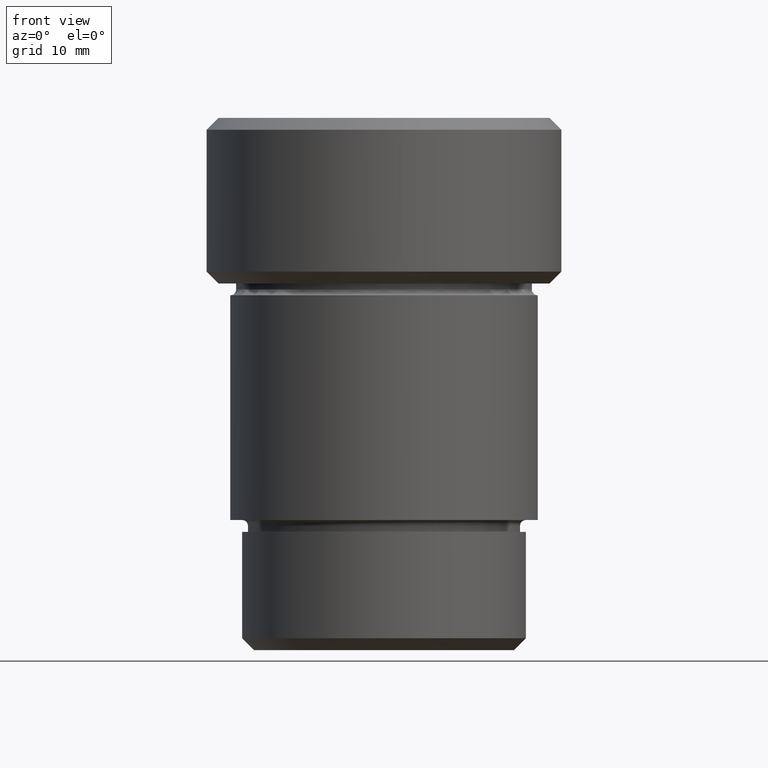
[diagram: clean part render]
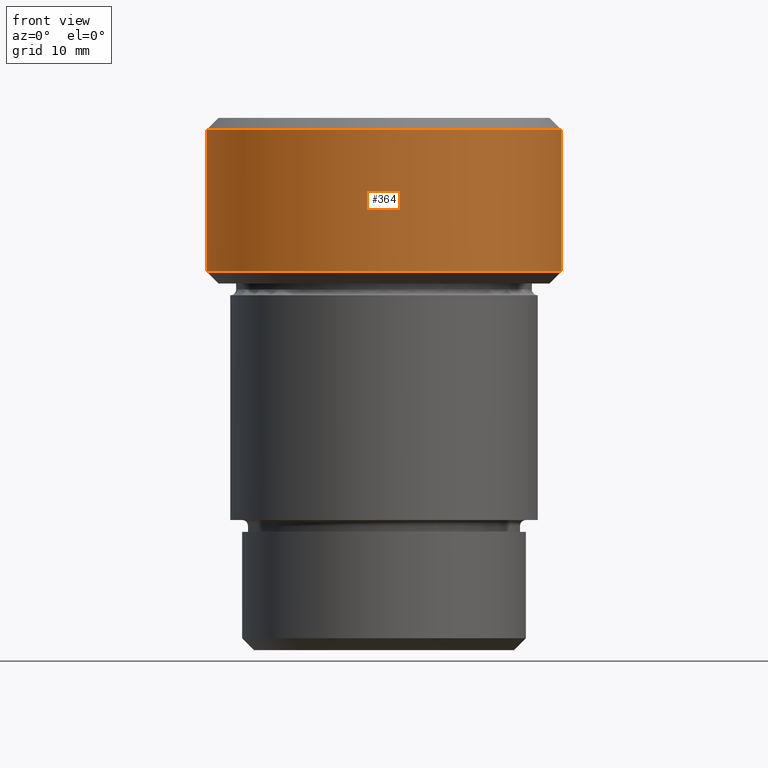
[diagram: same view with one face highlighted and labeled with its STEP entity id]
A machine part, front view. The second image highlights one B-rep face of the part: STEP entity #364.
In plain terms, the highlighted cylindrical surface (partial cylindrical patch) has radius 15 mm, axis along (-0, -0, 1).
Its self-contained STEP definition (entity closure, byte-faithful):
#20 = EDGE_CURVE ( 'NONE', #369, #198, #117, .T. ) ;
#76 = DIRECTION ( 'NONE',  ( -1.000000000000000000, 0.000000000000000000, 0.000000000000000000 ) ) ;
#77 = DIRECTION ( 'NONE',  ( -0.000000000000000000, -0.000000000000000000, 1.000000000000000000 ) ) ;
#117 = LINE ( 'NONE', #365, #191 ) ;
#123 = CARTESIAN_POINT ( 'NONE',  ( 14.99999999999999822, 0.000000000000000000, -13.00000000000001066 ) ) ;
#144 = CARTESIAN_POINT ( 'NONE',  ( -14.99999999999999822, 1.836970198721029589E-15, 0.000000000000000000 ) ) ;
#165 = CIRCLE ( 'NONE', #271, 14.99999999999999822 ) ;
#167 = CYLINDRICAL_SURFACE ( 'NONE', #193, 14.99999999999999822 ) ;
#182 = ORIENTED_EDGE ( 'NONE', *, *, #527, .F. ) ;
#191 = VECTOR ( 'NONE', #727, 1000.000000000000000 ) ;
#193 = AXIS2_PLACEMENT_3D ( 'NONE', #299, #407, #486 ) ;
#198 = VERTEX_POINT ( 'NONE', #488 ) ;
#201 = EDGE_CURVE ( 'NONE', #605, #369, #494, .T. ) ;
#234 = CARTESIAN_POINT ( 'NONE',  ( -14.99999999999999822, 1.836970198721029589E-15, -1.000000000000004441 ) ) ;
#271 = AXIS2_PLACEMENT_3D ( 'NONE', #344, #401, #464 ) ;
#299 = CARTESIAN_POINT ( 'NONE',  ( 0.000000000000000000, 0.000000000000000000, 0.000000000000000000 ) ) ;
#344 = CARTESIAN_POINT ( 'NONE',  ( 0.000000000000000000, 0.000000000000000000, -1.000000000000004441 ) ) ;
#364 = ADVANCED_FACE ( 'NONE', ( #538 ), #167, .T. ) ;
#365 = CARTESIAN_POINT ( 'NONE',  ( 14.99999999999999822, 0.000000000000000000, 0.000000000000000000 ) ) ;
#369 = VERTEX_POINT ( 'NONE', #123 ) ;
#378 = ORIENTED_EDGE ( 'NONE', *, *, #20, .T. ) ;
#401 = DIRECTION ( 'NONE',  ( 0.000000000000000000, 0.000000000000000000, -1.000000000000000000 ) ) ;
#407 = DIRECTION ( 'NONE',  ( -0.000000000000000000, -0.000000000000000000, 1.000000000000000000 ) ) ;
#432 = VERTEX_POINT ( 'NONE', #234 ) ;
#464 = DIRECTION ( 'NONE',  ( 1.000000000000000000, 0.000000000000000000, 0.000000000000000000 ) ) ;
#486 = DIRECTION ( 'NONE',  ( 1.000000000000000000, 0.000000000000000000, 0.000000000000000000 ) ) ;
#488 = CARTESIAN_POINT ( 'NONE',  ( 14.99999999999999822, 0.000000000000000000, -1.000000000000004441 ) ) ;
#494 = CIRCLE ( 'NONE', #749, 14.99999999999999822 ) ;
#522 = EDGE_LOOP ( 'NONE', ( #182, #542, #378, #762 ) ) ;
#527 = EDGE_CURVE ( 'NONE', #605, #432, #763, .T. ) ;
#538 = FACE_OUTER_BOUND ( 'NONE', #522, .T. ) ;
#542 = ORIENTED_EDGE ( 'NONE', *, *, #201, .T. ) ;
#605 = VERTEX_POINT ( 'NONE', #717 ) ;
#638 = DIRECTION ( 'NONE',  ( -0.000000000000000000, -0.000000000000000000, 1.000000000000000000 ) ) ;
#717 = CARTESIAN_POINT ( 'NONE',  ( -14.99999999999999822, 1.836970198721029589E-15, -13.00000000000001066 ) ) ;
#727 = DIRECTION ( 'NONE',  ( -0.000000000000000000, -0.000000000000000000, 1.000000000000000000 ) ) ;
#732 = CARTESIAN_POINT ( 'NONE',  ( 0.000000000000000000, 0.000000000000000000, -13.00000000000001066 ) ) ;
#744 = EDGE_CURVE ( 'NONE', #198, #432, #165, .T. ) ;
#749 = AXIS2_PLACEMENT_3D ( 'NONE', #732, #77, #76 ) ;
#750 = VECTOR ( 'NONE', #638, 1000.000000000000000 ) ;
#762 = ORIENTED_EDGE ( 'NONE', *, *, #744, .T. ) ;
#763 = LINE ( 'NONE', #144, #750 ) ;